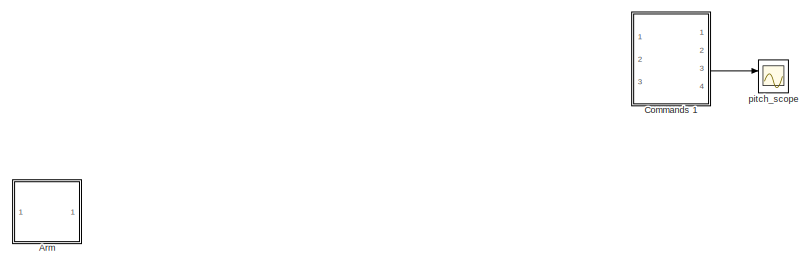
[diagram: root canvas - part 1/3, top center region]
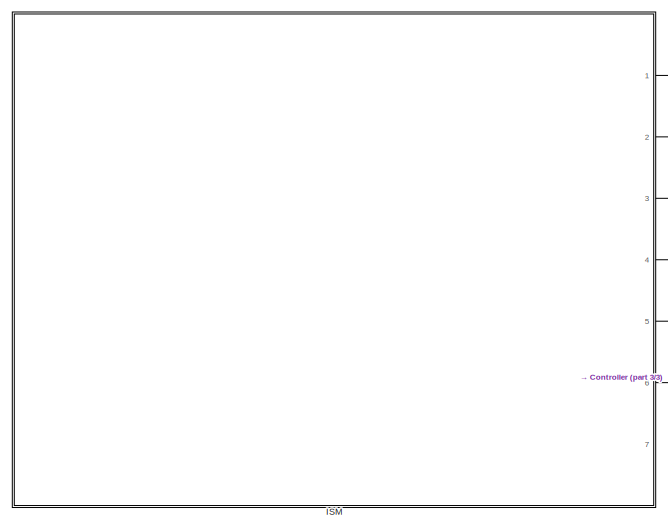
[diagram: root canvas - part 2/3, bottom left region]
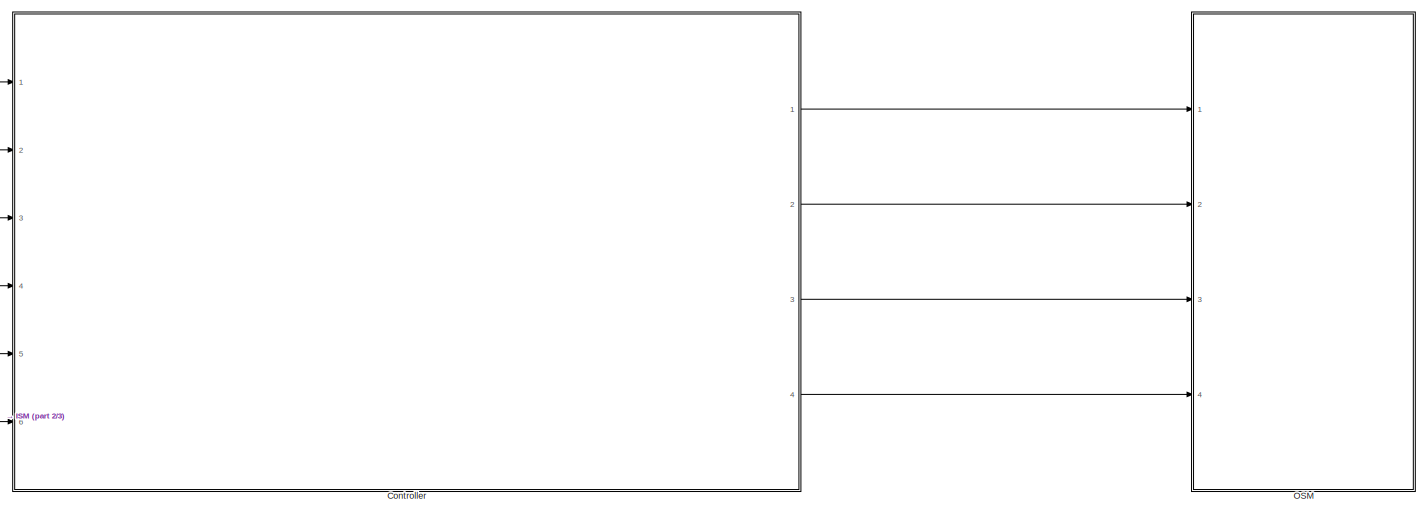
[diagram: root canvas - part 3/3, bottom right region]
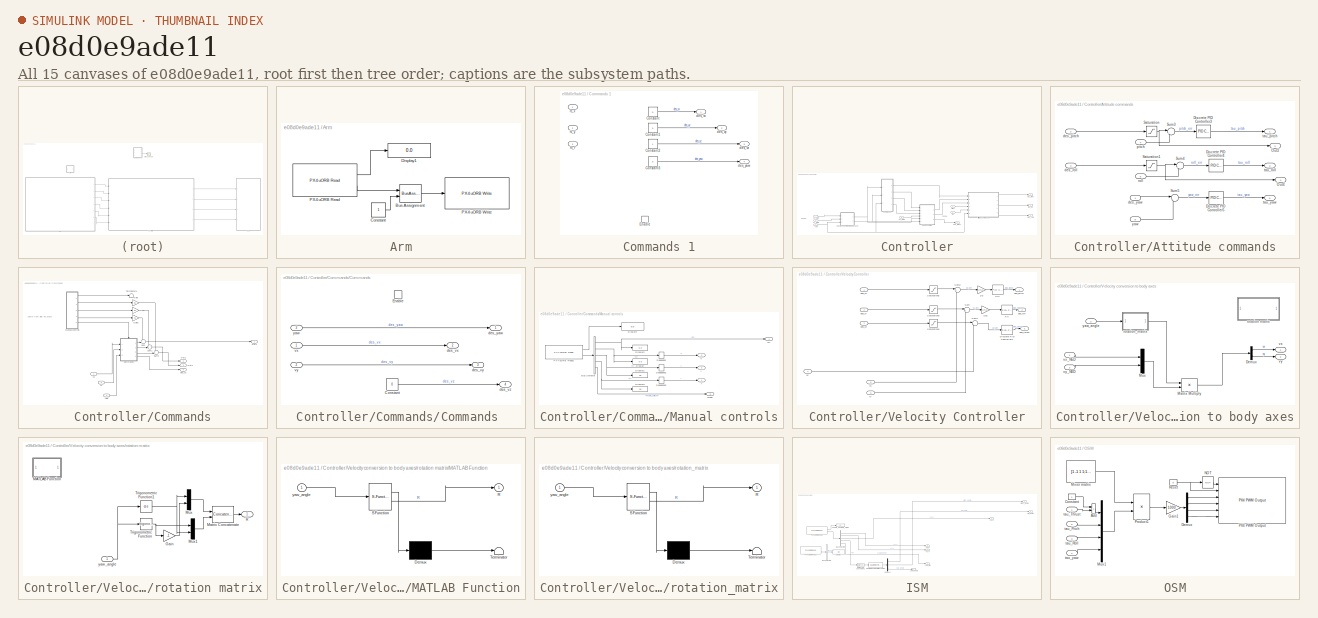
[diagram: thumbnail index - all 15 canvases of the model, root first then tree order]
MODEL slx_e08d0e9ade11
KIND model
CONFIG AbsTol = auto
CONFIG EnableMultiTasking = on
CONFIG FixedStep = auto
CONFIG MaxStep = auto
CONFIG MinStep = auto
CONFIG RelTol = 1e-3
CONFIG SampleTimeConstraint = Unconstrained
CONFIG SolverName = FixedStepAuto
CONFIG StartTime = 0.0
CONFIG StopTime = Inf
BLOCK [SubSystem] Arm
  Ports = []
  RequestExecContextInheritance = off
BLOCK [BusAssignment] Arm/Bus Assignment
  AssignedSignals = armed
  Ports = [2, 1]
BLOCK [Constant] Arm/Constant
  OutDataTypeStr = Inherit: Inherit via back propagation
  SampleTime = SampleTime
BLOCK [Display] Arm/Display1
  Decimation = 1
  Ports = [1]
BLOCK [Reference] Arm/PX4 uORB Read  REF=px4uORBlib/PX4 uORB Read
  Ports = [0, 2]
  SourceBlock = px4uORBlib/PX4 uORB Read
  SourceProductBaseCode = PX4AUTOPILOTS
  SourceType = PX4 uORB Read
BLOCK [Reference] Arm/PX4 uORB Write  REF=px4uORBlib/PX4 uORB Write
  Ports = [1]
  SourceBlock = px4uORBlib/PX4 uORB Write
  SourceProductBaseCode = PX4AUTOPILOTS
  SourceType = PX4 uORB Write
BLOCK [SubSystem] Commands 1
  Commented = on
  Ports = [3, 4, 1]
  RequestExecContextInheritance = off
BLOCK [Constant] Commands 1/Constant
  Value = 0
BLOCK [Constant] Commands 1/Constant1
  Value = 0
BLOCK [Constant] Commands 1/Constant2
BLOCK [Constant] Commands 1/Constant3
  Value = 0
BLOCK [EnablePort] Commands 1/Enable
  Ports = []
BLOCK [Outport] Commands 1/des_vx
BLOCK [Outport] Commands 1/des_vy
  Port = 2
BLOCK [Outport] Commands 1/des_vz
  Port = 3
BLOCK [Outport] Commands 1/des_yaw
  Port = 4
BLOCK [Inport] Commands 1/rc_r
  Port = 3
BLOCK [Inport] Commands 1/rc_x
BLOCK [Inport] Commands 1/rc_y
  Port = 2
BLOCK [SubSystem] Controller
  Ports = [6, 4]
  RequestExecContextInheritance = off
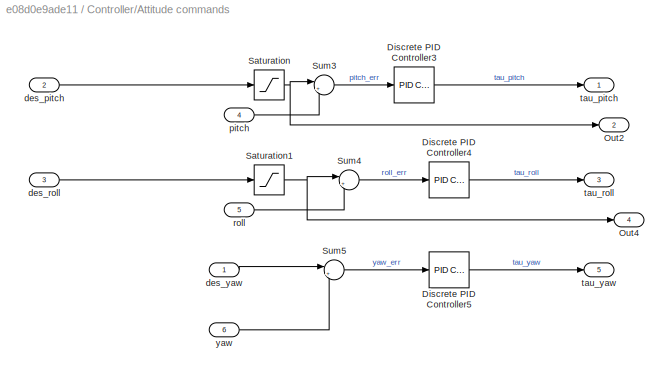
BLOCK [SubSystem] Controller/Attitude commands
  Ports = [6, 5]
  RequestExecContextInheritance = off
BLOCK [Reference] Controller/Attitude commands/Discrete PID Controller3  REF=pid_lib/PID Controller
  Ports = [1, 1]
  SourceBlock = pid_lib/PID Controller
  SourceProductBaseCode = SL
  SourceType = PID 1dof
BLOCK [Reference] Controller/Attitude commands/Discrete PID Controller4  REF=pid_lib/PID Controller
  Ports = [1, 1]
  SourceBlock = pid_lib/PID Controller
  SourceProductBaseCode = SL
  SourceType = PID 1dof
BLOCK [Reference] Controller/Attitude commands/Discrete PID Controller5  REF=pid_lib/PID Controller
  Ports = [1, 1]
  SourceBlock = pid_lib/PID Controller
  SourceProductBaseCode = SL
  SourceType = PID 1dof
BLOCK [Outport] Controller/Attitude commands/Out2
  Port = 2
BLOCK [Outport] Controller/Attitude commands/Out4
  Port = 4
BLOCK [Saturate] Controller/Attitude commands/Saturation
  LowerLimit = -pi/4
  UpperLimit = pi/4
BLOCK [Saturate] Controller/Attitude commands/Saturation1
  LowerLimit = -pi/4
  UpperLimit = pi/4
BLOCK [Sum] Controller/Attitude commands/Sum3
  Inputs = |+-
  Ports = [2, 1]
BLOCK [Sum] Controller/Attitude commands/Sum4
  Inputs = |+-
  Ports = [2, 1]
BLOCK [Sum] Controller/Attitude commands/Sum5
  Inputs = |+-
  Ports = [2, 1]
BLOCK [Inport] Controller/Attitude commands/des_pitch
  Port = 2
BLOCK [Inport] Controller/Attitude commands/des_roll
  Port = 3
BLOCK [Inport] Controller/Attitude commands/des_yaw
BLOCK [Inport] Controller/Attitude commands/pitch
  Port = 4
BLOCK [Inport] Controller/Attitude commands/roll
  Port = 5
BLOCK [Outport] Controller/Attitude commands/tau_pitch
BLOCK [Outport] Controller/Attitude commands/tau_roll
  Port = 3
BLOCK [Outport] Controller/Attitude commands/tau_yaw
  Port = 5
BLOCK [Inport] Controller/Attitude commands/yaw
  Port = 6
BLOCK [SubSystem] Controller/Commands
  Ports = [3, 4]
  RequestExecContextInheritance = off
BLOCK [SubSystem] Controller/Commands/Commands 
  Ports = [3, 4, 1]
  RequestExecContextInheritance = off
BLOCK [Constant] Controller/Commands/Commands /Constant
  Value = 0
BLOCK [EnablePort] Controller/Commands/Commands /Enable
  Ports = []
BLOCK [Outport] Controller/Commands/Commands /des_vx
  Port = 2
BLOCK [Outport] Controller/Commands/Commands /des_vy
  Port = 3
BLOCK [Outport] Controller/Commands/Commands /des_vz
  Port = 4
BLOCK [Outport] Controller/Commands/Commands /des_yaw
BLOCK [Inport] Controller/Commands/Commands /vx
BLOCK [Inport] Controller/Commands/Commands /vy
  Port = 2
BLOCK [Inport] Controller/Commands/Commands /yaw
  Port = 3
BLOCK [Gain] Controller/Commands/Gain
  Gain = .01
BLOCK [Gain] Controller/Commands/Gain1
  Gain = .01
BLOCK [Gain] Controller/Commands/Gain2
  Gain = .01
BLOCK [SubSystem] Controller/Commands/Manual controls
  Ports = [0, 5]
  RequestExecContextInheritance = off
BLOCK [Outport] Controller/Commands/Manual controls/<z>
BLOCK [BusSelector] Controller/Commands/Manual controls/Bus Selector
  OutputSignals = z,x,y,r,mode_switch
  Ports = [1, 5]
BLOCK [DeadZone] Controller/Commands/Manual controls/Deadband
  LowerValue = -0.05
  UpperValue = 0.05
BLOCK [DeadZone] Controller/Commands/Manual controls/Deadband1
  LowerValue = -0.05
  UpperValue = 0.05
BLOCK [DeadZone] Controller/Commands/Manual controls/Deadband2
  LowerValue = -0.05
  UpperValue = 0.05
BLOCK [Display] Controller/Commands/Manual controls/Display
  Decimation = 1
  Ports = [1]
BLOCK [Display] Controller/Commands/Manual controls/Display1
  Decimation = 1
  Ports = [1]
BLOCK [Display] Controller/Commands/Manual controls/Display2
  Decimation = 1
  Ports = [1]
BLOCK [Display] Controller/Commands/Manual controls/Display3
  Decimation = 1
  Ports = [1]
BLOCK [Display] Controller/Commands/Manual controls/Display4
  Decimation = 1
  Ports = [1]
BLOCK [Reference] Controller/Commands/Manual controls/PX4 uORB Read2  REF=px4uORBlib/PX4 uORB Read
  Ports = [0, 2]
  SourceBlock = px4uORBlib/PX4 uORB Read
  SourceProductBaseCode = PX4AUTOPILOTS
  SourceType = PX4 uORB Read
BLOCK [Outport] Controller/Commands/Manual controls/mode
  Port = 5
BLOCK [Outport] Controller/Commands/Manual controls/r
  Port = 4
BLOCK [Outport] Controller/Commands/Manual controls/x
  Port = 3
BLOCK [Outport] Controller/Commands/Manual controls/y
  Port = 2
BLOCK [Outport] Controller/Commands/Out1
BLOCK [Outport] Controller/Commands/Out2
  Port = 2
BLOCK [Outport] Controller/Commands/Out3
  Port = 3
BLOCK [Sum] Controller/Commands/Sum
  Inputs = ++|
  Ports = [2, 1]
BLOCK [Sum] Controller/Commands/Sum1
  Inputs = ++|
  Ports = [2, 1]
BLOCK [Sum] Controller/Commands/Sum3
  Inputs = ++|
  Ports = [2, 1]
BLOCK [Terminator] Controller/Commands/Terminator1
BLOCK [Outport] Controller/Commands/des_vz
  Port = 4
BLOCK [Inport] Controller/Commands/vx
BLOCK [Inport] Controller/Commands/vy
  Port = 2
BLOCK [Inport] Controller/Commands/yaw
  Port = 3
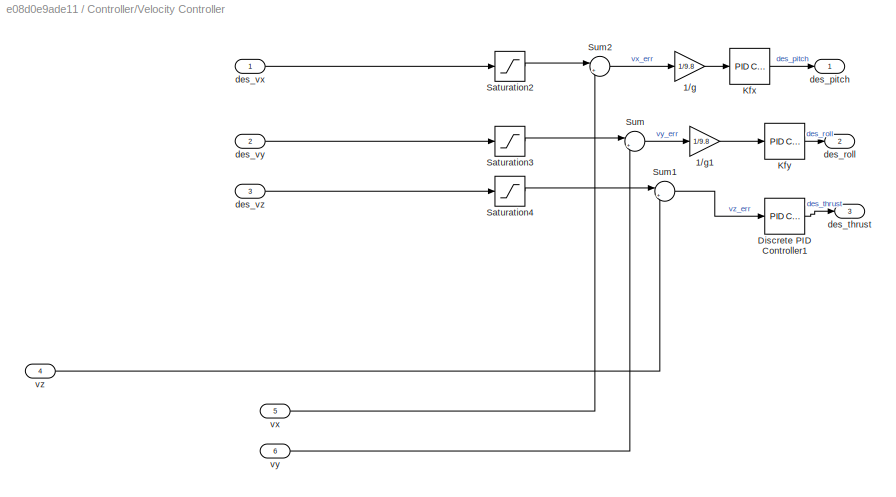
BLOCK [SubSystem] Controller/Velocity Controller
  Ports = [6, 3]
  RequestExecContextInheritance = off
BLOCK [Gain] Controller/Velocity Controller/1//g
  Gain = 1/9.8
BLOCK [Gain] Controller/Velocity Controller/1//g1
  Gain = 1/9.8
BLOCK [Reference] Controller/Velocity Controller/Discrete PID Controller1  REF=pid_lib/PID Controller
  Ports = [1, 1]
  SourceBlock = pid_lib/PID Controller
  SourceProductBaseCode = SL
  SourceType = PID 1dof
BLOCK [Reference] Controller/Velocity Controller/Kfx  REF=pid_lib/PID Controller
  Ports = [1, 1]
  SourceBlock = pid_lib/PID Controller
  SourceProductBaseCode = SL
  SourceType = PID 1dof
BLOCK [Reference] Controller/Velocity Controller/Kfy  REF=pid_lib/PID Controller
  Ports = [1, 1]
  SourceBlock = pid_lib/PID Controller
  SourceProductBaseCode = SL
  SourceType = PID 1dof
BLOCK [Saturate] Controller/Velocity Controller/Saturation2
  LowerLimit = -12
  UpperLimit = 12
BLOCK [Saturate] Controller/Velocity Controller/Saturation3
  LowerLimit = -12
  UpperLimit = 12
BLOCK [Saturate] Controller/Velocity Controller/Saturation4
  LowerLimit = -3
  UpperLimit = 1
BLOCK [Sum] Controller/Velocity Controller/Sum
  Inputs = |+-
  Ports = [2, 1]
BLOCK [Sum] Controller/Velocity Controller/Sum1
  Inputs = |+-
  Ports = [2, 1]
BLOCK [Sum] Controller/Velocity Controller/Sum2
  Inputs = |+-
  Ports = [2, 1]
BLOCK [Outport] Controller/Velocity Controller/des_pitch
BLOCK [Outport] Controller/Velocity Controller/des_roll
  Port = 2
BLOCK [Outport] Controller/Velocity Controller/des_thrust
  Port = 3
BLOCK [Inport] Controller/Velocity Controller/des_vx
BLOCK [Inport] Controller/Velocity Controller/des_vy
  Port = 2
BLOCK [Inport] Controller/Velocity Controller/des_vz
  Port = 3
BLOCK [Inport] Controller/Velocity Controller/vx
  Port = 5
BLOCK [Inport] Controller/Velocity Controller/vy
  Port = 6
BLOCK [Inport] Controller/Velocity Controller/vz
  Port = 4
BLOCK [SubSystem] Controller/Velocity conversion to body axes
  Ports = [3, 2]
  RequestExecContextInheritance = off
BLOCK [Demux] Controller/Velocity conversion to body axes/Demux
  Outputs = 2
  Ports = [1, 2]
BLOCK [Product] Controller/Velocity conversion to body axes/Matrix Multiply
  Multiplication = Matrix(*)
  Ports = [2, 1]
BLOCK [Mux] Controller/Velocity conversion to body axes/Mux
  DisplayOption = bar
  Inputs = 2
  Ports = [2, 1]
BLOCK [SubSystem] Controller/Velocity conversion to body axes/rotation matrix
  Commented = on
  Ports = [1, 1]
  RequestExecContextInheritance = off
BLOCK [Gain] Controller/Velocity conversion to body axes/rotation matrix/Gain
  Gain = -1
BLOCK [SubSystem] Controller/Velocity conversion to body axes/rotation matrix/MATLAB Function
  ErrorFcn = Stateflow.Translate.translate
  PermitHierarchicalResolution = ExplicitOnly
  Ports = [1, 1]
  RequestExecContextInheritance = off
  SFBlockType = MATLAB Function
  TreatAsAtomicUnit = on
BLOCK [Demux] Controller/Velocity conversion to body axes/rotation matrix/MATLAB Function/ Demux 
  Outputs = 1
  Ports = [1, 1]
BLOCK [S-Function] Controller/Velocity conversion to body axes/rotation matrix/MATLAB Function/ SFunction 
  EnableBusSupport = on
  FunctionName = sf_sfun
  PortCounts = [1 2]
  Ports = [1, 2]
  SFcnIsStateOwnerBlock = off
  SFunctionDeploymentMode = off
  Tag = Stateflow S-Function 2
BLOCK [Terminator] Controller/Velocity conversion to body axes/rotation matrix/MATLAB Function/ Terminator 
BLOCK [Outport] Controller/Velocity conversion to body axes/rotation matrix/MATLAB Function/R
BLOCK [Inport] Controller/Velocity conversion to body axes/rotation matrix/MATLAB Function/yaw_angle
BLOCK [Concatenate] Controller/Velocity conversion to body axes/rotation matrix/Matrix Concatenate
  ConcatenateDimension = 2
  Mode = Multidimensional array
  Ports = [2, 1]
BLOCK [Mux] Controller/Velocity conversion to body axes/rotation matrix/Mux
  DisplayOption = bar
  Inputs = 2
  Ports = [2, 1]
BLOCK [Mux] Controller/Velocity conversion to body axes/rotation matrix/Mux1
  DisplayOption = bar
  Inputs = 2
  Ports = [2, 1]
BLOCK [Outport] Controller/Velocity conversion to body axes/rotation matrix/R
BLOCK [Trigonometry] Controller/Velocity conversion to body axes/rotation matrix/Trigonometric Function
  Ports = [1, 1]
BLOCK [Trigonometry] Controller/Velocity conversion to body axes/rotation matrix/Trigonometric Function1
  Operator = cos
  Ports = [1, 1]
BLOCK [Inport] Controller/Velocity conversion to body axes/rotation matrix/yaw_angle
BLOCK [SubSystem] Controller/Velocity conversion to body axes/rotation_matrix
  ErrorFcn = Stateflow.Translate.translate
  PermitHierarchicalResolution = ExplicitOnly
  Ports = [1, 1]
  RequestExecContextInheritance = off
  SFBlockType = MATLAB Function
  SystemSampleTime = SampleTime
  TreatAsAtomicUnit = on
BLOCK [Demux] Controller/Velocity conversion to body axes/rotation_matrix/ Demux 
  Outputs = 1
  Ports = [1, 1]
BLOCK [S-Function] Controller/Velocity conversion to body axes/rotation_matrix/ SFunction 
  EnableBusSupport = on
  FunctionName = sf_sfun
  PortCounts = [1 2]
  Ports = [1, 2]
  SFcnIsStateOwnerBlock = off
  SFunctionDeploymentMode = off
  Tag = Stateflow S-Function 1
BLOCK [Terminator] Controller/Velocity conversion to body axes/rotation_matrix/ Terminator 
BLOCK [Outport] Controller/Velocity conversion to body axes/rotation_matrix/R
BLOCK [Inport] Controller/Velocity conversion to body axes/rotation_matrix/yaw_angle
BLOCK [Outport] Controller/Velocity conversion to body axes/vx
BLOCK [Inport] Controller/Velocity conversion to body axes/vx_NED
BLOCK [Outport] Controller/Velocity conversion to body axes/vy
  Port = 2
BLOCK [Inport] Controller/Velocity conversion to body axes/vy_NED
  Port = 2
BLOCK [Inport] Controller/Velocity conversion to body axes/yaw_angle
  Port = 3
BLOCK [Outport] Controller/des_thrust
BLOCK [Inport] Controller/pitch
BLOCK [Inport] Controller/roll
  Port = 2
BLOCK [Outport] Controller/tau_pitch
  Port = 2
BLOCK [Outport] Controller/tau_roll
  Port = 3
BLOCK [Outport] Controller/tau_yaw
  Port = 4
BLOCK [Inport] Controller/vx_NED
  Port = 4
BLOCK [Inport] Controller/vy_NED
  Port = 5
BLOCK [Inport] Controller/vz_NED
  Port = 3
BLOCK [Inport] Controller/yaw
  Port = 6
BLOCK [SubSystem] ISM
  Ports = [0, 7]
  RequestExecContextInheritance = off
BLOCK [Outport] ISM/<vx>
  Port = 4
BLOCK [Outport] ISM/<vy>
  Port = 5
BLOCK [Outport] ISM/<vz>
  Port = 3
BLOCK [BusSelector] ISM/Bus Selector1
  OutputSignals = pressure
  Ports = [1, 1]
BLOCK [BusSelector] ISM/Bus Selector2
  OutputSignals = vx,vy,vz,q,yawspeed
  Ports = [1, 5]
BLOCK [DataTypeConversion] ISM/Data Type Conversion1
  OutDataTypeStr = double
  RndMeth = Floor
  SaturateOnIntegerOverflow = off
BLOCK [Demux] ISM/Demux2
  Outputs = 3
  Ports = [1, 3]
BLOCK [Display] ISM/Display
  Decimation = 1
  Ports = [1]
BLOCK [Reference] ISM/PX4 uORB Read1  REF=px4uORBlib/PX4 uORB Read
  Ports = [0, 2]
  SourceBlock = px4uORBlib/PX4 uORB Read
  SourceProductBaseCode = PX4AUTOPILOTS
  SourceType = PX4 uORB Read
BLOCK [Reference] ISM/PX4 uORB Read2  REF=px4uORBlib/PX4 uORB Read
  Ports = [0, 2]
  SourceBlock = px4uORBlib/PX4 uORB Read
  SourceProductBaseCode = PX4AUTOPILOTS
  SourceType = PX4 uORB Read
BLOCK [Reference] ISM/Quaternions to Rotation Angles  REF=sharedtransform/Quaternions to Rotation Angles
  AttributesFormatString = Rotation Order: %<rotationOrder>
  Ports = [1, 1]
  SourceBlock = sharedtransform/Quaternions to Rotation Angles
  SourceProductBaseCode = AE,PW,MT,UV,VE,VP
  SourceType = Quat2Ang
BLOCK [Outport] ISM/pitch_angle
BLOCK [Outport] ISM/roll_angle
  Port = 2
BLOCK [Display] ISM/vehicle_odometry_status
  Decimation = 1
  Ports = [1]
BLOCK [Outport] ISM/yaw_angle
  Port = 6
BLOCK [Outport] ISM/yaw_rate
  Port = 7
BLOCK [SubSystem] OSM
  Ports = [4]
  RequestExecContextInheritance = off
BLOCK [Sum] OSM/Add
  IconShape = rectangular
  Ports = [2, 1]
BLOCK [Constant] OSM/Constant
BLOCK [Demux] OSM/Demux
  Ports = [1, 4]
BLOCK [Gain] OSM/Gain1
  Gain = 1000
  OutDataTypeStr = uint16
BLOCK [Constant] OSM/Mixer matrix
  NameLocation = top
  OutDataTypeStr = Inherit: Inherit via back propagation
  Value = [1 -1 1 1;1 1 -1 1;1 -1 -1 -1;1 1 1 -1]
BLOCK [Mux] OSM/Mux1
  DisplayOption = bar
  Ports = [4, 1]
BLOCK [Logic] OSM/NOT
  AllPortsSameDT = off
  IconShape = distinctive
  Operator = NOT
  OutDataTypeStr = boolean
  Ports = [1, 1]
BLOCK [Reference] OSM/PX4 PWM Output  REF=px4lib/PX4 PWM Output
  Ports = [6]
  SourceBlock = px4lib/PX4 PWM Output
  SourceProductBaseCode = PX4AUTOPILOTS
  SourceType = PX4 PWM Output
BLOCK [Product] OSM/Product1
  Multiplication = Matrix(*)
  Ports = [2, 1]
  RndMeth = Zero
BLOCK [Constant] OSM/Reset
  OutDataTypeStr = boolean
  Value = 0
BLOCK [Inport] OSM/tau_Pitch
  Port = 2
BLOCK [Inport] OSM/tau_Roll
  Port = 3
BLOCK [Inport] OSM/tau_Thrust
BLOCK [Inport] OSM/tau_yaw
  Port = 4
BLOCK [Scope] pitch_scope
  Commented = on
  Floating = off
  NumInputPorts = 2
  Ports = [2]
  ScopeSpecificationString = Simulink.scopes.TimeScopeBlockCfg('CurrentConfiguration', extmgr.ConfigurationSet(extmgr.Configuration('Core','General UI',true),extmgr.Configuration('Core','Source UI',true),extmgr.Configuration('Sources','WiredSimulink',true,'DataLoggingVariableName','ScopeData1'),extmgr.Configuration('Visuals','Time Domain',true,'SerializedDisplays',{struct('MinYLimReal','-0.12086','MaxYLimReal','1.08773','YLab...<+1386ch>
ANNOTATION Controller: From ISM
ANNOTATION Controller/Commands: Come from pilot RC sticks
LINE Arm/Bus Assignment:1 -> Arm/PX4 uORB Write:1
LINE Arm/Constant:1 -> Arm/Bus Assignment:2
LINE Arm/PX4 uORB Read:1 -> Arm/Display1:1
LINE Arm/PX4 uORB Read:2 -> Arm/Bus Assignment:1
LINE Commands 1/Constant1:1 -> Commands 1/des_vy:1
LINE Commands 1/Constant2:1 -> Commands 1/des_vz:1
LINE Commands 1/Constant3:1 -> Commands 1/des_yaw:1
LINE Commands 1/Constant:1 -> Commands 1/des_vx:1
LINE Commands 1:3 -> pitch_scope:1
LINE Controller/Attitude commands/Discrete PID Controller3:1 -> Controller/Attitude commands/tau_pitch:1
LINE Controller/Attitude commands/Discrete PID Controller4:1 -> Controller/Attitude commands/tau_roll:1
LINE Controller/Attitude commands/Discrete PID Controller5:1 -> Controller/Attitude commands/tau_yaw:1
NET Controller/Attitude commands/Saturation1:1 -> Controller/Attitude commands/Out4:1, Controller/Attitude commands/Sum4:1
NET Controller/Attitude commands/Saturation:1 -> Controller/Attitude commands/Out2:1, Controller/Attitude commands/Sum3:1
LINE Controller/Attitude commands/Sum3:1 -> Controller/Attitude commands/Discrete PID Controller3:1
LINE Controller/Attitude commands/Sum4:1 -> Controller/Attitude commands/Discrete PID Controller4:1
LINE Controller/Attitude commands/Sum5:1 -> Controller/Attitude commands/Discrete PID Controller5:1
LINE Controller/Attitude commands/des_pitch:1 -> Controller/Attitude commands/Saturation:1
LINE Controller/Attitude commands/des_roll:1 -> Controller/Attitude commands/Saturation1:1
LINE Controller/Attitude commands/des_yaw:1 -> Controller/Attitude commands/Sum5:1
LINE Controller/Attitude commands/pitch:1 -> Controller/Attitude commands/Sum3:2
LINE Controller/Attitude commands/roll:1 -> Controller/Attitude commands/Sum4:2
LINE Controller/Attitude commands/yaw:1 -> Controller/Attitude commands/Sum5:2
LINE Controller/Attitude commands:1 -> Controller/tau_pitch:1
LINE Controller/Attitude commands:3 -> Controller/tau_roll:1
LINE Controller/Attitude commands:5 -> Controller/tau_yaw:1
LINE Controller/Commands/Commands /Constant:1 -> Controller/Commands/Commands /des_vz:1
LINE Controller/Commands/Commands /vx:1 -> Controller/Commands/Commands /des_vx:1
LINE Controller/Commands/Commands /vy:1 -> Controller/Commands/Commands /des_vy:1
LINE Controller/Commands/Commands /yaw:1 -> Controller/Commands/Commands /des_yaw:1
LINE Controller/Commands/Commands :1 -> Controller/Commands/Sum:2
LINE Controller/Commands/Commands :2 -> Controller/Commands/Sum1:2
LINE Controller/Commands/Commands :3 -> Controller/Commands/Sum3:2
LINE Controller/Commands/Commands :4 -> Controller/Commands/des_vz:1
LINE Controller/Commands/Gain1:1 -> Controller/Commands/Sum1:1
LINE Controller/Commands/Gain2:1 -> Controller/Commands/Sum:1
LINE Controller/Commands/Gain:1 -> Controller/Commands/Sum3:1
NET Controller/Commands/Manual controls/Bus Selector:1 -> Controller/Commands/Manual controls/<z>:1, Controller/Commands/Manual controls/Display2:1
NET Controller/Commands/Manual controls/Bus Selector:2 -> Controller/Commands/Manual controls/Deadband:1, Controller/Commands/Manual controls/Display:1
NET Controller/Commands/Manual controls/Bus Selector:3 -> Controller/Commands/Manual controls/Deadband1:1, Controller/Commands/Manual controls/Display1:1
NET Controller/Commands/Manual controls/Bus Selector:4 -> Controller/Commands/Manual controls/Deadband2:1, Controller/Commands/Manual controls/Display3:1
LINE Controller/Commands/Manual controls/Bus Selector:5 -> Controller/Commands/Manual controls/mode:1
LINE Controller/Commands/Manual controls/Deadband1:1 -> Controller/Commands/Manual controls/y:1
LINE Controller/Commands/Manual controls/Deadband2:1 -> Controller/Commands/Manual controls/r:1
LINE Controller/Commands/Manual controls/Deadband:1 -> Controller/Commands/Manual controls/x:1
LINE Controller/Commands/Manual controls/PX4 uORB Read2:1 -> Controller/Commands/Manual controls/Display4:1
LINE Controller/Commands/Manual controls/PX4 uORB Read2:2 -> Controller/Commands/Manual controls/Bus Selector:1
LINE Controller/Commands/Manual controls:1 -> Controller/Commands/Terminator1:1
LINE Controller/Commands/Manual controls:2 -> Controller/Commands/Gain:1
LINE Controller/Commands/Manual controls:3 -> Controller/Commands/Gain1:1
LINE Controller/Commands/Manual controls:4 -> Controller/Commands/Gain2:1
LINE Controller/Commands/Manual controls:5 -> Controller/Commands/Commands :enable
LINE Controller/Commands/Sum1:1 -> Controller/Commands/Out2:1
LINE Controller/Commands/Sum3:1 -> Controller/Commands/Out3:1
LINE Controller/Commands/Sum:1 -> Controller/Commands/Out1:1
LINE Controller/Commands/vx:1 -> Controller/Commands/Commands :1
LINE Controller/Commands/vy:1 -> Controller/Commands/Commands :2
LINE Controller/Commands/yaw:1 -> Controller/Commands/Commands :3
LINE Controller/Commands:1 -> Controller/Attitude commands:1
LINE Controller/Commands:2 -> Controller/Velocity Controller:1
LINE Controller/Commands:3 -> Controller/Velocity Controller:2
LINE Controller/Commands:4 -> Controller/Velocity Controller:3
LINE Controller/Velocity Controller/1//g1:1 -> Controller/Velocity Controller/Kfy:1
LINE Controller/Velocity Controller/1//g:1 -> Controller/Velocity Controller/Kfx:1
LINE Controller/Velocity Controller/Discrete PID Controller1:1 -> Controller/Velocity Controller/des_thrust:1
LINE Controller/Velocity Controller/Kfx:1 -> Controller/Velocity Controller/des_pitch:1
LINE Controller/Velocity Controller/Kfy:1 -> Controller/Velocity Controller/des_roll:1
LINE Controller/Velocity Controller/Saturation2:1 -> Controller/Velocity Controller/Sum2:1
LINE Controller/Velocity Controller/Saturation3:1 -> Controller/Velocity Controller/Sum:1
LINE Controller/Velocity Controller/Saturation4:1 -> Controller/Velocity Controller/Sum1:1
LINE Controller/Velocity Controller/Sum1:1 -> Controller/Velocity Controller/Discrete PID Controller1:1
LINE Controller/Velocity Controller/Sum2:1 -> Controller/Velocity Controller/1//g:1
LINE Controller/Velocity Controller/Sum:1 -> Controller/Velocity Controller/1//g1:1
LINE Controller/Velocity Controller/des_vx:1 -> Controller/Velocity Controller/Saturation2:1
LINE Controller/Velocity Controller/des_vy:1 -> Controller/Velocity Controller/Saturation3:1
LINE Controller/Velocity Controller/des_vz:1 -> Controller/Velocity Controller/Saturation4:1
LINE Controller/Velocity Controller/vx:1 -> Controller/Velocity Controller/Sum2:2
LINE Controller/Velocity Controller/vy:1 -> Controller/Velocity Controller/Sum:2
LINE Controller/Velocity Controller/vz:1 -> Controller/Velocity Controller/Sum1:2
LINE Controller/Velocity Controller:1 -> Controller/Attitude commands:2
LINE Controller/Velocity Controller:2 -> Controller/Attitude commands:3
LINE Controller/Velocity Controller:3 -> Controller/des_thrust:1
LINE Controller/Velocity conversion to body axes/Demux:1 -> Controller/Velocity conversion to body axes/vx:1
LINE Controller/Velocity conversion to body axes/Demux:2 -> Controller/Velocity conversion to body axes/vy:1
LINE Controller/Velocity conversion to body axes/Matrix Multiply:1 -> Controller/Velocity conversion to body axes/Demux:1
LINE Controller/Velocity conversion to body axes/Mux:1 -> Controller/Velocity conversion to body axes/Matrix Multiply:2
LINE Controller/Velocity conversion to body axes/rotation matrix/Gain:1 -> Controller/Velocity conversion to body axes/rotation matrix/Mux:2
LINE Controller/Velocity conversion to body axes/rotation matrix/Matrix Concatenate:1 -> Controller/Velocity conversion to body axes/rotation matrix/R:1
LINE Controller/Velocity conversion to body axes/rotation matrix/Mux1:1 -> Controller/Velocity conversion to body axes/rotation matrix/Matrix Concatenate:2
LINE Controller/Velocity conversion to body axes/rotation matrix/Mux:1 -> Controller/Velocity conversion to body axes/rotation matrix/Matrix Concatenate:1
NET Controller/Velocity conversion to body axes/rotation matrix/Trigonometric Function1:1 -> Controller/Velocity conversion to body axes/rotation matrix/Mux1:2, Controller/Velocity conversion to body axes/rotation matrix/Mux:1
NET Controller/Velocity conversion to body axes/rotation matrix/Trigonometric Function:1 -> Controller/Velocity conversion to body axes/rotation matrix/Gain:1, Controller/Velocity conversion to body axes/rotation matrix/Mux1:1
NET Controller/Velocity conversion to body axes/rotation matrix/yaw_angle:1 -> Controller/Velocity conversion to body axes/rotation matrix/Trigonometric Function1:1, Controller/Velocity conversion to body axes/rotation matrix/Trigonometric Function:1
LINE Controller/Velocity conversion to body axes/rotation_matrix:1 -> Controller/Velocity conversion to body axes/Matrix Multiply:1
LINE Controller/Velocity conversion to body axes/vx_NED:1 -> Controller/Velocity conversion to body axes/Mux:1
LINE Controller/Velocity conversion to body axes/vy_NED:1 -> Controller/Velocity conversion to body axes/Mux:2
LINE Controller/Velocity conversion to body axes/yaw_angle:1 -> Controller/Velocity conversion to body axes/rotation_matrix:1
NET Controller/Velocity conversion to body axes:1 -> Controller/Commands:1, Controller/Velocity Controller:5
NET Controller/Velocity conversion to body axes:2 -> Controller/Commands:2, Controller/Velocity Controller:6
LINE Controller/pitch:1 -> Controller/Attitude commands:4
LINE Controller/roll:1 -> Controller/Attitude commands:5
LINE Controller/vx_NED:1 -> Controller/Velocity conversion to body axes:1
LINE Controller/vy_NED:1 -> Controller/Velocity conversion to body axes:2
LINE Controller/vz_NED:1 -> Controller/Velocity Controller:4
NET Controller/yaw:1 -> Controller/Attitude commands:6, Controller/Commands:3, Controller/Velocity conversion to body axes:3
LINE Controller:1 -> OSM:1
LINE Controller:2 -> OSM:2
LINE Controller:3 -> OSM:3
LINE Controller:4 -> OSM:4
LINE ISM/Bus Selector1:1 -> ISM/Display:1
LINE ISM/Bus Selector2:1 -> ISM/<vx>:1
LINE ISM/Bus Selector2:2 -> ISM/<vy>:1
LINE ISM/Bus Selector2:3 -> ISM/<vz>:1
LINE ISM/Bus Selector2:4 -> ISM/Data Type Conversion1:1
LINE ISM/Bus Selector2:5 -> ISM/yaw_rate:1
LINE ISM/Data Type Conversion1:1 -> ISM/Quaternions to Rotation Angles:1
LINE ISM/Demux2:1 -> ISM/roll_angle:1
LINE ISM/Demux2:2 -> ISM/pitch_angle:1
LINE ISM/Demux2:3 -> ISM/yaw_angle:1
LINE ISM/PX4 uORB Read1:1 -> ISM/vehicle_odometry_status:1
LINE ISM/PX4 uORB Read1:2 -> ISM/Bus Selector2:1
LINE ISM/PX4 uORB Read2:2 -> ISM/Bus Selector1:1
LINE ISM/Quaternions to Rotation Angles:1 -> ISM/Demux2:1
LINE ISM:1 -> Controller:1
LINE ISM:2 -> Controller:2
LINE ISM:3 -> Controller:3
LINE ISM:4 -> Controller:4
LINE ISM:5 -> Controller:5
LINE ISM:6 -> Controller:6
LINE OSM/Add:1 -> OSM/Mux1:1
LINE OSM/Constant:1 -> OSM/Add:1
LINE OSM/Demux:1 -> OSM/PX4 PWM Output:3
LINE OSM/Demux:2 -> OSM/PX4 PWM Output:4
LINE OSM/Demux:3 -> OSM/PX4 PWM Output:5
LINE OSM/Demux:4 -> OSM/PX4 PWM Output:6
LINE OSM/Gain1:1 -> OSM/Demux:1
LINE OSM/Mixer matrix:1 -> OSM/Product1:1
LINE OSM/Mux1:1 -> OSM/Product1:2
LINE OSM/NOT:1 -> OSM/PX4 PWM Output:1
LINE OSM/Product1:1 -> OSM/Gain1:1
NET OSM/Reset:1 -> OSM/NOT:1, OSM/PX4 PWM Output:2
LINE OSM/tau_Pitch:1 -> OSM/Mux1:2
LINE OSM/tau_Roll:1 -> OSM/Mux1:3
LINE OSM/tau_Thrust:1 -> OSM/Add:2
LINE OSM/tau_yaw:1 -> OSM/Mux1:4
note: NET lines group one-source signal fan-out (src -> all destinations, sorted); 1:1 wires keep LINE
CHART Controller/Velocity conversion to body axes/rotation matrix/MATLAB Function states=1 transitions=1
  STATE_LABEL 'eML_blk_kernel()'
  STATE_LABEL 'SCRIPT:\nfunction R = fcn(yaw_angle)\n    \nR = [cos(yaw_angle) -sin(yaw_angle); sin(yaw_angle) cos(yaw_angle)];\n'
CHART Controller/Velocity conversion to body axes/rotation_matrix states=1 transitions=1
  STATE_LABEL 'eML_blk_kernel()'
  STATE_LABEL 'SCRIPT:\nfunction R = fcn(yaw_angle)\n    \nR = [cos(yaw_angle) -sin(yaw_angle); sin(yaw_angle) cos(yaw_angle)];\n'
CHART  states=0 transitions=0
CHART  states=0 transitions=0
